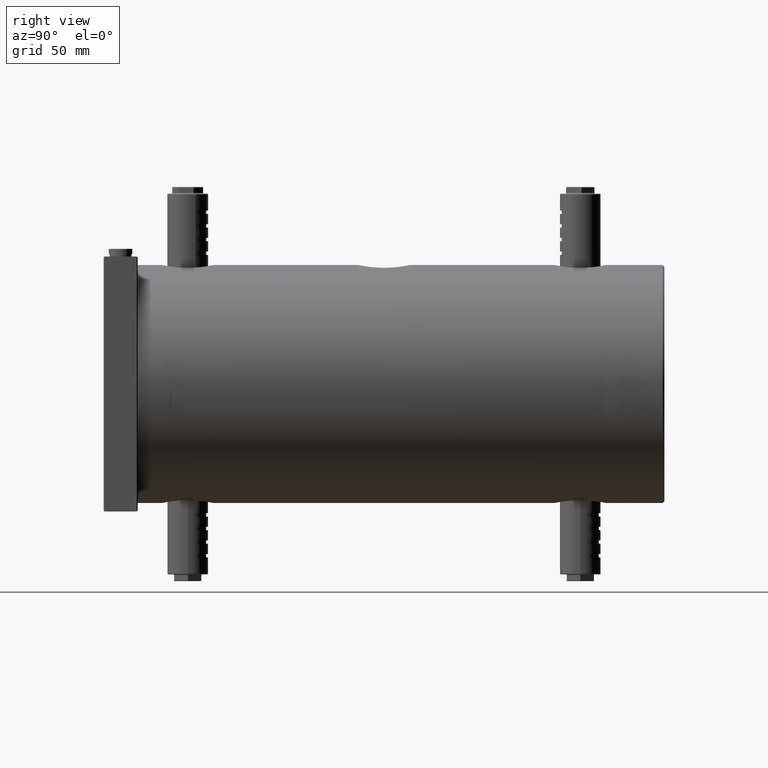
[diagram: clean part render]
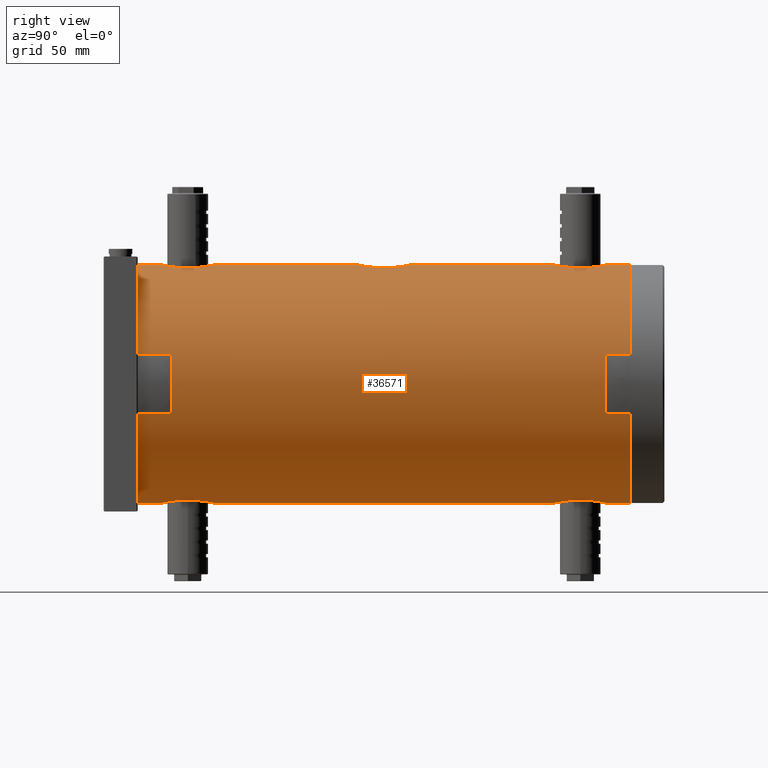
[diagram: same view with one face highlighted and labeled with its STEP entity id]
A machine part, right view. The second image highlights one B-rep face of the part: STEP entity #36571.
In plain terms, the highlighted cylindrical surface (partial cylindrical patch) has radius 70 mm, axis along (0, -1, 0).
Its self-contained STEP definition (entity closure, byte-faithful):
#13 = CARTESIAN_POINT ( 'NONE',  ( 3.884281969590265500, 63.99680388627126600, 69.89375879856953600 ) ) ;
#188 = CARTESIAN_POINT ( 'NONE',  ( 3.411199531626185200, 179.6153289274118900, 69.91851655966361500 ) ) ;
#196 = CARTESIAN_POINT ( 'NONE',  ( 3.894325176139356700, 35.00599892205499900, 69.89317888122792500 ) ) ;
#452 = LINE ( 'NONE', #1716, #36040 ) ;
#473 = CARTESIAN_POINT ( 'NONE',  ( 9.912018537136562600, 176.3006079322059600, 69.29819185406861900 ) ) ;
#933 = CARTESIAN_POINT ( 'NONE',  ( 0.9818532637390553500, 34.49999999999999300, 69.99999999999998600 ) ) ;
#1199 = CARTESIAN_POINT ( 'NONE',  ( 15.00000000000000400, 279.5055494783385400, 68.37397165588669200 ) ) ;
#1338 = CARTESIAN_POINT ( 'NONE',  ( 11.90163262882527000, 271.3570439946605000, 68.98153119982045200 ) ) ;
#1411 = AXIS2_PLACEMENT_3D ( 'NONE', #41334, #21249, #20947 ) ;
#1476 = AXIS2_PLACEMENT_3D ( 'NONE', #7689, #34488, #27295 ) ;
#1668 = CARTESIAN_POINT ( 'NONE',  ( 9.904372127727697300, 291.7759016860898700, -69.29683190011068900 ) ) ;
#1679 = CARTESIAN_POINT ( 'NONE',  ( 15.00000000000000000, 49.50000000000000000, 68.37397165588669200 ) ) ;
#1716 = CARTESIAN_POINT ( 'NONE',  ( 0.0000000000000000000, 20.00000000000000000, -70.00000000000000000 ) ) ;
#1739 = VERTEX_POINT ( 'NONE', #38891 ) ;
#1930 = CARTESIAN_POINT ( 'NONE',  ( 15.00000000000000000, 280.5000000000000000, 68.37397165588669200 ) ) ;
#2156 = EDGE_CURVE ( 'NONE', #30040, #35231, #17505, .T. ) ;
#2246 = CARTESIAN_POINT ( 'NONE',  ( 6.663719744854588200, 293.9744707856372100, -69.68805248096434500 ) ) ;
#2696 = CARTESIAN_POINT ( 'NONE',  ( 15.00000000000000000, 280.5000000000000000, -68.37397165588670600 ) ) ;
#2818 = CARTESIAN_POINT ( 'NONE',  ( 4.833438498675554300, 63.70849461233930800, -69.83453018951335900 ) ) ;
#2942 = CARTESIAN_POINT ( 'NONE',  ( 14.97598740810713200, 48.51709635050727300, -68.37925344864797200 ) ) ;
#3068 = CARTESIAN_POINT ( 'NONE',  ( 4.831473039360050200, 63.70921664294800000, 69.83467644144872100 ) ) ;
#3099 = EDGE_CURVE ( 'NONE', #38672, #30040, #31744, .T. ) ;
#3110 = CARTESIAN_POINT ( 'NONE',  ( 13.66829952197161900, 55.69807483708534300, -68.65285158838342700 ) ) ;
#3141 = EDGE_CURVE ( 'NONE', #32850, #40868, #5724, .T. ) ;
#3213 = CARTESIAN_POINT ( 'NONE',  ( 10.94724385125489800, 59.76621009225912200, 69.13956417800851300 ) ) ;
#3335 = CARTESIAN_POINT ( 'NONE',  ( 14.99999999999999800, 164.0063396400913100, 68.37397165588669200 ) ) ;
#3509 = CARTESIAN_POINT ( 'NONE',  ( 9.906659207541682800, 38.19390577684160300, -69.29902337167075600 ) ) ;
#3524 = EDGE_CURVE ( 'NONE', #30681, #5154, #18295, .T. ) ;
#3527 = CARTESIAN_POINT ( 'NONE',  ( 4.835300587557441100, 179.2078043361017300, 69.83439046006492400 ) ) ;
#3614 = CARTESIAN_POINT ( 'NONE',  ( 5.296851514377408400, 150.9577954640444400, 69.80078522711120600 ) ) ;
#3670 = ORIENTED_EDGE ( 'NONE', *, *, #6348, .T. ) ;
#3819 = CARTESIAN_POINT ( 'NONE',  ( 7.515997053499379600, 36.50951068749665800, -69.59669964715550300 ) ) ;
#3833 = CARTESIAN_POINT ( 'NONE',  ( 14.49544038897939500, 168.8891676084357100, 68.48287149377165400 ) ) ;
#3842 = CARTESIAN_POINT ( 'NONE',  ( 14.04041362575999600, 44.19826756735611200, 68.57772089566894600 ) ) ;
#4112 = EDGE_CURVE ( 'NONE', #35492, #38672, #28766, .T. ) ;
#4123 = CARTESIAN_POINT ( 'NONE',  ( 9.158292757567851400, 37.57949129223593600, 69.40322452848236900 ) ) ;
#4235 = VERTEX_POINT ( 'NONE', #24815 ) ;
#4405 = CARTESIAN_POINT ( 'NONE',  ( 14.04041362575999600, 275.1982675673562000, 68.57772089566893200 ) ) ;
#4413 = CARTESIAN_POINT ( 'NONE',  ( 8.572527594031473000E-015, 20.00000000000000000, 70.00000000000000000 ) ) ;
#4526 = LINE ( 'NONE', #4413, #13396 ) ;
#4542 = CARTESIAN_POINT ( 'NONE',  ( 14.20854562913976900, 275.6667145892660100, 68.54296981607628000 ) ) ;
#4588 = DIRECTION ( 'NONE',  ( 0.0000000000000000000, -1.000000000000000000, 0.0000000000000000000 ) ) ;
#4681 = CARTESIAN_POINT ( 'NONE',  ( 6.198379823196940000, 266.8318371385618700, 69.72650165042803400 ) ) ;
#4690 = CARTESIAN_POINT ( 'NONE',  ( 11.90163262882523500, 174.1429560053394700, 68.98153119982048100 ) ) ;
#4712 = VERTEX_POINT ( 'NONE', #8422 ) ;
#4833 = CARTESIAN_POINT ( 'NONE',  ( 12.18936415524447400, 289.2557330832066200, 68.93110498968903200 ) ) ;
#4834 = CARTESIAN_POINT ( 'NONE',  ( 8.572527655287267000E-015, 265.5000000000000000, 70.00000000000000000 ) ) ;
#5115 = CARTESIAN_POINT ( 'NONE',  ( 10.94724385125490200, 290.7662100922591400, 69.13956417800849900 ) ) ;
#5154 = VERTEX_POINT ( 'NONE', #42327 ) ;
#5724 = B_SPLINE_CURVE_WITH_KNOTS ( 'NONE', 3,
 ( #38353, #1199, #38059, #11541, #34428, #4542, #4405, #31178, #37916, #7906, #1338, #37759, #31455, #21496, #7632, #21346, #17702, #18264, #4681, #11129, #31609, #34563, #18119, #24848, #14512, #4834 ),
 .UNSPECIFIED., .F., .F.,
 ( 4, 2, 2, 2, 2, 2, 2, 2, 2, 2, 2, 2, 4 ),
 ( 0.0000000000000000000, 0.002940317991430679800, 0.004410476987146018600, 0.005880635982861358600, 0.008820953974292035400, 0.01029111297000737300, 0.01176127196572271200, 0.01470158995715326400, 0.01617174895286854400, 0.01764190794858382100, 0.01911206694429910100, 0.02058222594001438100, 0.02352254393144494200 ),
 .UNSPECIFIED. ) ;
#5813 = ORIENTED_EDGE ( 'NONE', *, *, #6290, .T. ) ;
#5892 = CARTESIAN_POINT ( 'NONE',  ( 14.61534878447354700, 52.91111284338482800, -68.45729545746755200 ) ) ;
#5971 = CARTESIAN_POINT ( 'NONE',  ( 1.964992235705831600, 150.0969915483788400, 69.97903048680194600 ) ) ;
#6038 = ORIENTED_EDGE ( 'NONE', *, *, #2156, .T. ) ;
#6071 = ORIENTED_EDGE ( 'NONE', *, *, #22391, .F. ) ;
#6161 = CARTESIAN_POINT ( 'NONE',  ( 5.301930517381077100, 63.54034058477932200, -69.80040821976446400 ) ) ;
#6262 = CARTESIAN_POINT ( 'NONE',  ( 7.935791044963282000, 267.7618181376661300, -69.54991035834278500 ) ) ;
#6290 = EDGE_CURVE ( 'NONE', #11088, #23359, #31830, .T. ) ;
#6348 = EDGE_CURVE ( 'NONE', #40868, #5154, #18201, .T. ) ;
#6350 = EDGE_LOOP ( 'NONE', ( #37235, #5813, #17350, #43171, #3670, #29189, #28836, #11381, #30468, #26176, #6038, #6071, #22523, #25142, #21692, #11482, #8424, #31132, #13256 ) ) ;
#6413 = CARTESIAN_POINT ( 'NONE',  ( -3.549444933162112900E-021, 265.5000000000000000, -70.00000000000000000 ) ) ;
#6421 = CARTESIAN_POINT ( 'NONE',  ( 11.27472723212912700, 59.40551446732787600, 69.08675378547002300 ) ) ;
#6459 = CARTESIAN_POINT ( 'NONE',  ( 14.04254687036676200, 54.79579275481893300, -68.57727991421417400 ) ) ;
#6563 = CARTESIAN_POINT ( 'NONE',  ( 14.61209414795812800, 52.92490283768052700, 68.45799069203846400 ) ) ;
#6697 = CARTESIAN_POINT ( 'NONE',  ( 8.572527594031473000E-015, 20.00000000000000000, 70.00000000000000000 ) ) ;
#6872 = CARTESIAN_POINT ( 'NONE',  ( 0.9813042146204605800, 34.52396530523667200, -69.99485240078578800 ) ) ;
#6961 = CIRCLE ( 'NONE', #1411, 70.00000000000000000 ) ;
#6981 = CARTESIAN_POINT ( 'NONE',  ( 6.654704849420136600, 151.5212953090069700, 69.68887946088511900 ) ) ;
#7035 = CARTESIAN_POINT ( 'NONE',  ( 3.894325176139379300, 179.4940010779449400, 69.89317888122793900 ) ) ;
#7129 = CARTESIAN_POINT ( 'NONE',  ( 14.49046315668147700, 161.0923693559493000, 68.48392589587416500 ) ) ;
#7130 = EDGE_CURVE ( 'NONE', #17225, #1739, #39927, .T. ) ;
#7167 = CARTESIAN_POINT ( 'NONE',  ( 12.19463680880068800, 40.75193575162212100, -68.93015887730885500 ) ) ;
#7367 = CARTESIAN_POINT ( 'NONE',  ( 8.571058060392850000E-015, 150.0000000000000000, 70.00000000000000000 ) ) ;
#7584 = VERTEX_POINT ( 'NONE', #32860 ) ;
#7632 = CARTESIAN_POINT ( 'NONE',  ( 9.158292757567853200, 268.5794912922359600, 69.40322452848236900 ) ) ;
#7660 = CARTESIAN_POINT ( 'NONE',  ( 0.9944421717328090200, 295.5000000000000000, -70.00000000000001400 ) ) ;
#7689 = CARTESIAN_POINT ( 'NONE',  ( 0.0000000000000000000, 20.00000000000000000, 0.0000000000000000000 ) ) ;
#7906 = CARTESIAN_POINT ( 'NONE',  ( 12.19654584307158300, 271.7544753279142400, 68.92982548532849300 ) ) ;
#8067 = CARTESIAN_POINT ( 'NONE',  ( 5.296019958376627200, 179.0424627839952300, 69.80083894510318000 ) ) ;
#8318 = DIRECTION ( 'NONE',  ( 0.0000000000000000000, -1.000000000000000000, 0.0000000000000000000 ) ) ;
#8422 = CARTESIAN_POINT ( 'NONE',  ( 0.0000000000000000000, 310.0000000000000000, -70.00000000000000000 ) ) ;
#8424 = ORIENTED_EDGE ( 'NONE', *, *, #7130, .F. ) ;
#8465 = CARTESIAN_POINT ( 'NONE',  ( 13.47364613455915200, 287.1644427817546400, 68.69212029715872300 ) ) ;
#8549 = CARTESIAN_POINT ( 'NONE',  ( 0.0000000000000000000, 20.00000000000000000, -70.00000000000000000 ) ) ;
#8780 = CARTESIAN_POINT ( 'NONE',  ( 14.20786684150948000, 285.3351129253862300, -68.54310972289820800 ) ) ;
#9093 = VECTOR ( 'NONE', #16446, 1000.000000000000000 ) ;
#9611 = CARTESIAN_POINT ( 'NONE',  ( 3.904520863412934300, 265.9837397770987200, -69.89768449480979500 ) ) ;
#9620 = CARTESIAN_POINT ( 'NONE',  ( 1.964992235705822900, 64.40300845162121800, 69.97903048680194600 ) ) ;
#9768 = CARTESIAN_POINT ( 'NONE',  ( 8.571058099166941200E-015, 64.50000000000000000, 70.00000000000000000 ) ) ;
#9877 = CARTESIAN_POINT ( 'NONE',  ( 11.27472723212913200, 155.0944855326721100, 69.08675378547000900 ) ) ;
#9906 = CARTESIAN_POINT ( 'NONE',  ( 0.9896757848060138100, 64.50000000000001400, 70.00000000000000000 ) ) ;
#10002 = CARTESIAN_POINT ( 'NONE',  ( 8.571058131478683900E-015, 295.5000000000000600, 70.00000000000000000 ) ) ;
#10049 = CARTESIAN_POINT ( 'NONE',  ( 6.654704849420134800, 62.97870469099301300, 69.68887946088510400 ) ) ;
#10069 = CARTESIAN_POINT ( 'NONE',  ( 12.73707744354900100, 41.56245294884249100, -68.83198985897932700 ) ) ;
#10233 = CARTESIAN_POINT ( 'NONE',  ( 1.957424923832685700, 179.9045286833094500, 69.97935015604001300 ) ) ;
#10240 = CARTESIAN_POINT ( 'NONE',  ( 6.198379823196935600, 35.83183713856170300, 69.72650165042803400 ) ) ;
#10328 = CARTESIAN_POINT ( 'NONE',  ( 15.00000000000001100, 165.0000000000000000, 68.37397165588670600 ) ) ;
#10360 = CARTESIAN_POINT ( 'NONE',  ( 1.965607426050439900, 34.62112367861596600, -69.97412884785401800 ) ) ;
#10734 = CARTESIAN_POINT ( 'NONE',  ( 8.572527594031473000E-015, 20.00000000000000000, 70.00000000000000000 ) ) ;
#10975 = EDGE_CURVE ( 'NONE', #19269, #4235, #13338, .T. ) ;
#11088 = VERTEX_POINT ( 'NONE', #33697 ) ;
#11129 = CARTESIAN_POINT ( 'NONE',  ( 5.296019958376629900, 266.4575372160047700, 69.80083894510318000 ) ) ;
#11165 = CARTESIAN_POINT ( 'NONE',  ( 4.833438498675604000, 294.7084946123392200, -69.83453018951334500 ) ) ;
#11381 = ORIENTED_EDGE ( 'NONE', *, *, #32768, .T. ) ;
#11408 = CARTESIAN_POINT ( 'NONE',  ( 13.47462535697296800, 171.6633923618771300, 68.69193943685095900 ) ) ;
#11469 = DIRECTION ( 'NONE',  ( 0.0000000000000000000, -1.000000000000000000, 0.0000000000000000000 ) ) ;
#11482 = ORIENTED_EDGE ( 'NONE', *, *, #43076, .F. ) ;
#11541 = CARTESIAN_POINT ( 'NONE',  ( 14.61479017948289700, 277.0871026298668800, 68.45741379177846400 ) ) ;
#11723 = CARTESIAN_POINT ( 'NONE',  ( 8.745971789726938900, 292.6962264588577800, -69.45269013681172500 ) ) ;
#11826 = CARTESIAN_POINT ( 'NONE',  ( 14.20257355608248400, 285.3507735599113200, 68.54420860284835700 ) ) ;
#11838 = CARTESIAN_POINT ( 'NONE',  ( 8.571058099166941200E-015, 64.50000000000000000, 70.00000000000000000 ) ) ;
#11841 = EDGE_CURVE ( 'NONE', #22541, #30681, #32931, .T. ) ;
#11868 = CARTESIAN_POINT ( 'NONE',  ( 15.00000000000000200, 281.4818238889431500, -68.37397165588673400 ) ) ;
#11915 = VECTOR ( 'NONE', #4588, 1000.000000000000000 ) ;
#11982 = CARTESIAN_POINT ( 'NONE',  ( 5.296851514377402200, 294.5422045359555900, 69.80078522711120600 ) ) ;
#12546 = CARTESIAN_POINT ( 'NONE',  ( 8.571058060392850000E-015, 150.0000000000000000, 70.00000000000000000 ) ) ;
#12606 = CARTESIAN_POINT ( 'NONE',  ( 3.412969720909060400, 64.11477398072194900, -69.91840138259898700 ) ) ;
#12858 = CARTESIAN_POINT ( 'NONE',  ( 15.00000000000000000, 49.50000000000000000, -68.37397165588670600 ) ) ;
#12887 = CARTESIAN_POINT ( 'NONE',  ( 9.904372127727697300, 60.77590168608976700, -69.29683190011067500 ) ) ;
#12983 = CARTESIAN_POINT ( 'NONE',  ( 14.51633582594487300, 276.5961691150546900, -68.47857156061535000 ) ) ;
#13052 = DIRECTION ( 'NONE',  ( 0.0000000000000000000, -1.000000000000000000, 0.0000000000000000000 ) ) ;
#13067 = CYLINDRICAL_SURFACE ( 'NONE', #1476, 70.00000000000000000 ) ;
#13114 = CARTESIAN_POINT ( 'NONE',  ( 1.965607426050434800, 265.6211236786160200, -69.97412884785400400 ) ) ;
#13256 = ORIENTED_EDGE ( 'NONE', *, *, #17055, .F. ) ;
#13278 = CARTESIAN_POINT ( 'NONE',  ( 8.740231513553784000, 61.70038454756961200, 69.45341899641522300 ) ) ;
#13338 = B_SPLINE_CURVE_WITH_KNOTS ( 'NONE', 3,
 ( #32680, #16387, #22824, #12606, #39410, #2818, #6161, #29592, #32949, #26328, #32824, #12887, #25909, #26484, #29724, #19873, #15968, #19308, #3110, #6459, #16538, #36038, #5892, #16098, #26037, #29873 ),
 .UNSPECIFIED., .F., .F.,
 ( 4, 2, 2, 2, 2, 2, 2, 2, 2, 2, 2, 2, 4 ),
 ( 5.109216232873362200E-019, 0.002940340695797959200, 0.004410511043696934700, 0.005880681391595911500, 0.008821022087393864300, 0.01029119243529284100, 0.01176136278319182000, 0.01470170347898976300, 0.01617187382688872400, 0.01764204417478768300, 0.01911221452268664300, 0.02058238487058560600, 0.02352272556638354900 ),
 .UNSPECIFIED. ) ;
#13396 = VECTOR ( 'NONE', #27830, 1000.000000000000000 ) ;
#13397 = CARTESIAN_POINT ( 'NONE',  ( 14.20257355608248400, 160.1492264400887400, 68.54420860284837100 ) ) ;
#13413 = VECTOR ( 'NONE', #11469, 1000.000000000000000 ) ;
#13414 = CARTESIAN_POINT ( 'NONE',  ( 0.4901609354173572800, 265.4999999999999400, -69.99999999999998600 ) ) ;
#13423 = CARTESIAN_POINT ( 'NONE',  ( 13.47364613455915700, 56.16444278175453800, 68.69212029715872300 ) ) ;
#13588 = CARTESIAN_POINT ( 'NONE',  ( 13.66562444703594400, 43.29571613274870100, -68.65338868779950600 ) ) ;
#13691 = CARTESIAN_POINT ( 'NONE',  ( 12.18936415524448300, 156.2442669167934100, 68.93110498968903200 ) ) ;
#13846 = CARTESIAN_POINT ( 'NONE',  ( 9.896639457386660500, 153.7174036577838200, 69.29792839007598100 ) ) ;
#13903 = CARTESIAN_POINT ( 'NONE',  ( 14.04041362575999900, 170.3017324326438900, 68.57772089566893200 ) ) ;
#13912 = CARTESIAN_POINT ( 'NONE',  ( 13.47462535697296600, 42.83660763812292100, 68.69193943685095900 ) ) ;
#14055 = CARTESIAN_POINT ( 'NONE',  ( 14.20854562913979400, 44.66671458926617100, 68.54296981607629400 ) ) ;
#14243 = CARTESIAN_POINT ( 'NONE',  ( 3.889264802872451500, 294.9954153497749900, -69.89347146768193400 ) ) ;
#14512 = CARTESIAN_POINT ( 'NONE',  ( 0.9818532637390381400, 265.5000000000000600, 70.00000000000001400 ) ) ;
#14514 = LINE ( 'NONE', #8549, #13413 ) ;
#14682 = CARTESIAN_POINT ( 'NONE',  ( 1.959143183267115000E-014, 295.5000000000000000, -70.00000000000000000 ) ) ;
#14797 = CARTESIAN_POINT ( 'NONE',  ( 4.831473039360064400, 294.7092166429480900, 69.83467644144872100 ) ) ;
#14809 = CARTESIAN_POINT ( 'NONE',  ( 6.198379823196937400, 178.6681628614383900, 69.72650165042803400 ) ) ;
#15253 = CARTESIAN_POINT ( 'NONE',  ( 12.99747105796112500, 288.0037140288114900, -68.78314516951695600 ) ) ;
#15414 = EDGE_CURVE ( 'NONE', #4235, #18748, #34550, .T. ) ;
#15530 = CARTESIAN_POINT ( 'NONE',  ( 9.143403604904586100, 292.4012905433271500, -69.40133766113244500 ) ) ;
#15968 = CARTESIAN_POINT ( 'NONE',  ( 12.99747105796113500, 57.00371402881139500, -68.78314516951695600 ) ) ;
#16037 = CARTESIAN_POINT ( 'NONE',  ( 3.407087707206828000, 150.3838456766401600, 69.91869012606848300 ) ) ;
#16043 = CARTESIAN_POINT ( 'NONE',  ( 14.49046315668147500, 284.4076306440507600, 68.48392589587413700 ) ) ;
#16098 = CARTESIAN_POINT ( 'NONE',  ( 14.90453449847790400, 51.45736942659057400, -68.39512948415976700 ) ) ;
#16170 = CARTESIAN_POINT ( 'NONE',  ( 3.884281969590269900, 150.5031961137287300, 69.89375879856950700 ) ) ;
#16188 = CARTESIAN_POINT ( 'NONE',  ( 10.95144359926252700, 270.2380168144019900, -69.13891825392271100 ) ) ;
#16337 = CARTESIAN_POINT ( 'NONE',  ( 12.73707744354900500, 272.5624529488425200, -68.83198985897931300 ) ) ;
#16387 = CARTESIAN_POINT ( 'NONE',  ( 0.9944421717328130200, 64.50000000000000000, -70.00000000000002800 ) ) ;
#16446 = DIRECTION ( 'NONE',  ( 0.0000000000000000000, -1.000000000000000000, 0.0000000000000000000 ) ) ;
#16491 = CARTESIAN_POINT ( 'NONE',  ( 0.9813042146204595800, 265.5239653052366900, -69.99485240078580300 ) ) ;
#16498 = CARTESIAN_POINT ( 'NONE',  ( 11.89540583947579600, 58.65084755285112500, 68.98259449083686000 ) ) ;
#16538 = CARTESIAN_POINT ( 'NONE',  ( 14.20786684150947300, 54.33511292538625500, -68.54310972289819400 ) ) ;
#16555 = DIRECTION ( 'NONE',  ( 0.0000000000000000000, 0.0000000000000000000, -1.000000000000000000 ) ) ;
#16636 = CARTESIAN_POINT ( 'NONE',  ( 12.98882839742184100, 272.9812663004863100, -68.78478111668530900 ) ) ;
#16780 = CARTESIAN_POINT ( 'NONE',  ( 14.87826716255492000, 278.5293491756250400, -68.40058236069235400 ) ) ;
#16803 = CARTESIAN_POINT ( 'NONE',  ( 3.904520863412931100, 34.98373977709867000, -69.89768449480975200 ) ) ;
#17055 = EDGE_CURVE ( 'NONE', #4712, #32111, #14514, .T. ) ;
#17094 = CARTESIAN_POINT ( 'NONE',  ( 14.23180435925517700, 44.66001404843669300, -68.53906932590994900 ) ) ;
#17225 = VERTEX_POINT ( 'NONE', #2696 ) ;
#17251 = CARTESIAN_POINT ( 'NONE',  ( 12.19654584307160400, 173.7455246720857900, 68.92982548532852100 ) ) ;
#17264 = CARTESIAN_POINT ( 'NONE',  ( 13.01341886220260900, 41.97599450520521500, 68.78195415424633600 ) ) ;
#17350 = ORIENTED_EDGE ( 'NONE', *, *, #18815, .T. ) ;
#17411 = CARTESIAN_POINT ( 'NONE',  ( 14.61479017948290800, 168.4128973701331500, 68.45741379177846400 ) ) ;
#17422 = CARTESIAN_POINT ( 'NONE',  ( 11.27632908884149600, 39.59611661885919200, 69.08650308260992300 ) ) ;
#17482 = CARTESIAN_POINT ( 'NONE',  ( 1.959143183267115000E-014, 295.5000000000000000, -70.00000000000000000 ) ) ;
#17505 = LINE ( 'NONE', #39465, #9093 ) ;
#17565 = CARTESIAN_POINT ( 'NONE',  ( 5.296019958376628100, 35.45753721600471700, 69.80083894510316600 ) ) ;
#17702 = CARTESIAN_POINT ( 'NONE',  ( 7.504125154213921800, 267.5027645693818400, 69.59796477038644000 ) ) ;
#18118 = CARTESIAN_POINT ( 'NONE',  ( 6.654704849420119700, 293.9787046909930300, 69.68887946088509000 ) ) ;
#18119 = CARTESIAN_POINT ( 'NONE',  ( 3.411199531626197200, 265.8846710725882200, 69.91851655966363000 ) ) ;
#18201 = LINE ( 'NONE', #6697, #39184 ) ;
#18262 = CARTESIAN_POINT ( 'NONE',  ( 11.27472723212913400, 290.4055144673278100, 69.08675378547000900 ) ) ;
#18264 = CARTESIAN_POINT ( 'NONE',  ( 6.640019768517783300, 267.0407964335657900, 69.68571397340888000 ) ) ;
#18295 = B_SPLINE_CURVE_WITH_KNOTS ( 'NONE', 3,
 ( #23826, #40570, #41600, #17411, #3833, #30603, #13903, #11408, #27212, #17251, #4690, #34858, #28129, #473, #23514, #20291, #30304, #23971, #14809, #8067, #3527, #7035, #188, #10233, #33685, #37034 ),
 .UNSPECIFIED., .F., .F.,
 ( 4, 2, 2, 2, 2, 2, 2, 2, 2, 2, 2, 2, 4 ),
 ( 0.0000000000000000000, 0.002940317991430658100, 0.004410476987145986500, 0.005880635982861316100, 0.008820953974291898300, 0.01029111297000722200, 0.01176127196572254600, 0.01470158995715313700, 0.01617174895286843300, 0.01764190794858373100, 0.01911206694429902800, 0.02058222594001432600, 0.02352254393144493500 ),
 .UNSPECIFIED. ) ;
#18451 = CARTESIAN_POINT ( 'NONE',  ( 14.61534878447353900, 283.9111128433849000, -68.45729545746758000 ) ) ;
#18732 = CARTESIAN_POINT ( 'NONE',  ( 12.74322368437369800, 288.4280145608179900, -68.83086405059326300 ) ) ;
#18748 = VERTEX_POINT ( 'NONE', #33692 ) ;
#18815 = EDGE_CURVE ( 'NONE', #23359, #32850, #38553, .T. ) ;
#18872 = CARTESIAN_POINT ( 'NONE',  ( 14.90453449847790200, 282.4573694265906200, -68.39512948415976700 ) ) ;
#18949 = CARTESIAN_POINT ( 'NONE',  ( 5.259694865256710300E-016, 64.50000000000000000, -70.00000000000000000 ) ) ;
#18997 = CARTESIAN_POINT ( 'NONE',  ( 15.00000000000000000, 280.5000000000000000, -68.37397165588670600 ) ) ;
#19269 = VERTEX_POINT ( 'NONE', #18949 ) ;
#19308 = CARTESIAN_POINT ( 'NONE',  ( 13.45937121201897900, 56.13967655129327000, -68.69425478080722800 ) ) ;
#19534 = CARTESIAN_POINT ( 'NONE',  ( 4.831473039360061800, 150.7907833570520500, 69.83467644144873500 ) ) ;
#19688 = CARTESIAN_POINT ( 'NONE',  ( 9.906659207541707700, 269.1939057768416300, -69.29902337167074200 ) ) ;
#19696 = CARTESIAN_POINT ( 'NONE',  ( 9.138625920494515500, 61.40487165223373000, 69.40195867546438500 ) ) ;
#19811 = CARTESIAN_POINT ( 'NONE',  ( 13.47364613455917500, 158.3355572182454400, 68.69212029715870900 ) ) ;
#19819 = DIRECTION ( 'NONE',  ( 0.0000000000000000000, -1.000000000000000000, 0.0000000000000000000 ) ) ;
#19831 = CARTESIAN_POINT ( 'NONE',  ( 14.97598740810713700, 279.5170963505073000, -68.37925344864797200 ) ) ;
#19838 = CARTESIAN_POINT ( 'NONE',  ( 14.03648741840250700, 54.81182693530939100, 68.57852181056901500 ) ) ;
#19873 = CARTESIAN_POINT ( 'NONE',  ( 12.74322368437369600, 57.42801456081787100, -68.83086405059326300 ) ) ;
#19983 = CARTESIAN_POINT ( 'NONE',  ( 14.99999999999999600, 50.49366035990870900, 68.37397165588670600 ) ) ;
#19998 = LINE ( 'NONE', #28383, #20509 ) ;
#20001 = CARTESIAN_POINT ( 'NONE',  ( 6.198748216113336300, 35.83193190268806200, -69.72648120499791000 ) ) ;
#20114 = CARTESIAN_POINT ( 'NONE',  ( 6.646834916421252800, 267.0440492762376700, -69.68508017559017300 ) ) ;
#20276 = CARTESIAN_POINT ( 'NONE',  ( 9.152333566239322600, 37.57578023679821700, -69.40390501797155300 ) ) ;
#20291 = CARTESIAN_POINT ( 'NONE',  ( 7.928452556073299500, 177.7429530952363700, 69.55077365034955500 ) ) ;
#20372 = CIRCLE ( 'NONE', #31797, 70.00000000000000000 ) ;
#20437 = CARTESIAN_POINT ( 'NONE',  ( 15.00000000000001100, 165.0000000000000000, 68.37397165588670600 ) ) ;
#20509 = VECTOR ( 'NONE', #8318, 1000.000000000000000 ) ;
#20594 = CARTESIAN_POINT ( 'NONE',  ( 10.95144359926250000, 39.23801681440186700, -69.13891825392272500 ) ) ;
#20763 = CARTESIAN_POINT ( 'NONE',  ( 15.00000000000000200, 48.50554947833852300, 68.37397165588672000 ) ) ;
#20947 = DIRECTION ( 'NONE',  ( 0.0000000000000000000, 0.0000000000000000000, -1.000000000000000000 ) ) ;
#21249 = DIRECTION ( 'NONE',  ( 0.0000000000000000000, -1.000000000000000000, 0.0000000000000000000 ) ) ;
#21346 = CARTESIAN_POINT ( 'NONE',  ( 7.928452556073316300, 267.7570469047636300, 69.55077365034955500 ) ) ;
#21495 = CARTESIAN_POINT ( 'NONE',  ( 9.896639457386680000, 291.7825963422162100, 69.29792839007596700 ) ) ;
#21496 = CARTESIAN_POINT ( 'NONE',  ( 9.912018537136587400, 269.1993920677940700, 69.29819185406857700 ) ) ;
#21680 = CARTESIAN_POINT ( 'NONE',  ( 5.301930517381057600, 294.5403405847794700, -69.80040821976449200 ) ) ;
#21692 = ORIENTED_EDGE ( 'NONE', *, *, #10975, .F. ) ;
#21812 = CARTESIAN_POINT ( 'NONE',  ( 15.00000000000000000, 280.5000000000000000, -68.37397165588670600 ) ) ;
#21856 = DIRECTION ( 'NONE',  ( 0.0000000000000000000, -1.000000000000000000, 0.0000000000000000000 ) ) ;
#21911 = CARTESIAN_POINT ( 'NONE',  ( 1.964992235705822500, 295.4030084516211900, 69.97903048680194600 ) ) ;
#22199 = CARTESIAN_POINT ( 'NONE',  ( 14.90222602801809900, 282.4740006978817600, 68.39563435870680100 ) ) ;
#22391 = EDGE_CURVE ( 'NONE', #7584, #35231, #20372, .T. ) ;
#22523 = ORIENTED_EDGE ( 'NONE', *, *, #39803, .F. ) ;
#22541 = VERTEX_POINT ( 'NONE', #7367 ) ;
#22824 = CARTESIAN_POINT ( 'NONE',  ( 1.971693979283500700, 64.40209200568078500, -69.97883451236033600 ) ) ;
#23058 = CARTESIAN_POINT ( 'NONE',  ( 9.896639457386674700, 60.78259634221616600, 69.29792839007595300 ) ) ;
#23323 = CARTESIAN_POINT ( 'NONE',  ( 14.61209414795814400, 161.5750971623195700, 68.45799069203847900 ) ) ;
#23343 = CARTESIAN_POINT ( 'NONE',  ( 13.45266804429839300, 273.8466743600071700, -68.69557117382382200 ) ) ;
#23350 = CARTESIAN_POINT ( 'NONE',  ( 15.00000000000000000, 49.50000000000000000, 68.37397165588669200 ) ) ;
#23359 = VERTEX_POINT ( 'NONE', #10002 ) ;
#23504 = CARTESIAN_POINT ( 'NONE',  ( 11.90394632942944700, 40.36023273368499500, -68.98112147085383600 ) ) ;
#23514 = CARTESIAN_POINT ( 'NONE',  ( 9.158292757567839000, 176.9205087077641000, 69.40322452848239700 ) ) ;
#23613 = CARTESIAN_POINT ( 'NONE',  ( 14.90222602801811600, 163.0259993021183500, 68.39563435870685700 ) ) ;
#23659 = CARTESIAN_POINT ( 'NONE',  ( 13.45266804429841100, 42.84667436000710700, -68.69557117382382200 ) ) ;
#23826 = CARTESIAN_POINT ( 'NONE',  ( 15.00000000000001100, 165.0000000000000000, 68.37397165588670600 ) ) ;
#23834 = CARTESIAN_POINT ( 'NONE',  ( 14.90209088409777900, 47.52831821036554100, 68.39565825020211800 ) ) ;
#23971 = CARTESIAN_POINT ( 'NONE',  ( 6.640019768517781500, 178.4592035664344100, 69.68571397340889500 ) ) ;
#24124 = CARTESIAN_POINT ( 'NONE',  ( 10.94726016259435600, 39.23377100820516700, 69.13956444296879100 ) ) ;
#24815 = CARTESIAN_POINT ( 'NONE',  ( 15.00000000000000000, 49.50000000000000000, -68.37397165588670600 ) ) ;
#24847 = CARTESIAN_POINT ( 'NONE',  ( 11.89540583947580500, 289.6508475528510800, 68.98259449083686000 ) ) ;
#24848 = CARTESIAN_POINT ( 'NONE',  ( 1.957424923832688800, 265.5954713166905800, 69.97935015603999900 ) ) ;
#25022 = CARTESIAN_POINT ( 'NONE',  ( 11.92090800321390600, 289.6577623557834000, -68.97972409095186200 ) ) ;
#25137 = CARTESIAN_POINT ( 'NONE',  ( 9.138625920494519100, 292.4048716522337900, 69.40195867546437100 ) ) ;
#25142 = ORIENTED_EDGE ( 'NONE', *, *, #15414, .F. ) ;
#25326 = CARTESIAN_POINT ( 'NONE',  ( 13.45937121201896500, 287.1396765512932300, -68.69425478080722800 ) ) ;
#25854 = CARTESIAN_POINT ( 'NONE',  ( 14.61209414795812800, 283.9249028376805200, 68.45799069203845000 ) ) ;
#25909 = CARTESIAN_POINT ( 'NONE',  ( 10.26672210974663100, 60.44679816382872400, -69.24388846382828400 ) ) ;
#26037 = CARTESIAN_POINT ( 'NONE',  ( 15.00000000000000000, 50.48182388894319000, -68.37397165588672000 ) ) ;
#26176 = ORIENTED_EDGE ( 'NONE', *, *, #3099, .T. ) ;
#26281 = CARTESIAN_POINT ( 'NONE',  ( 7.515997053499392100, 267.5095106874966900, -69.59669964715550300 ) ) ;
#26301 = CARTESIAN_POINT ( 'NONE',  ( 14.80508887929420300, 47.04026045613254300, -68.41651142432418500 ) ) ;
#26328 = CARTESIAN_POINT ( 'NONE',  ( 8.745971789726942400, 61.69622645885773700, -69.45269013681173900 ) ) ;
#26432 = CARTESIAN_POINT ( 'NONE',  ( 11.28317143307910100, 270.6040752676624900, -69.08537544229149300 ) ) ;
#26439 = CARTESIAN_POINT ( 'NONE',  ( 10.25819940778272400, 60.45475068211995100, 69.24515020977254700 ) ) ;
#26452 = CARTESIAN_POINT ( 'NONE',  ( 14.51633582594487300, 45.59616911505459300, -68.47857156061533600 ) ) ;
#26484 = CARTESIAN_POINT ( 'NONE',  ( 11.30107575578341500, 59.41148719595101800, -69.08525440816919200 ) ) ;
#26578 = CARTESIAN_POINT ( 'NONE',  ( 14.49046315668147300, 53.40763064405079100, 68.48392589587416500 ) ) ;
#26713 = CARTESIAN_POINT ( 'NONE',  ( 14.80508887929419400, 278.0402604561325000, -68.41651142432418500 ) ) ;
#26866 = CARTESIAN_POINT ( 'NONE',  ( 9.138625920494497700, 153.0951283477663200, 69.40195867546438500 ) ) ;
#26903 = CARTESIAN_POINT ( 'NONE',  ( 4.839551745235583600, 35.26831005314947000, -69.83842339010786300 ) ) ;
#27010 = CARTESIAN_POINT ( 'NONE',  ( 8.740231513553832000, 152.7996154524305200, 69.45341899641523800 ) ) ;
#27212 = CARTESIAN_POINT ( 'NONE',  ( 13.01341886220261300, 172.5240054947948400, 68.78195415424633600 ) ) ;
#27238 = FACE_OUTER_BOUND ( 'NONE', #6350, .T. ) ;
#27295 = DIRECTION ( 'NONE',  ( 0.0000000000000000000, 0.0000000000000000000, -1.000000000000000000 ) ) ;
#27830 = DIRECTION ( 'NONE',  ( 0.0000000000000000000, -1.000000000000000000, 0.0000000000000000000 ) ) ;
#28129 = CARTESIAN_POINT ( 'NONE',  ( 10.94726016259434500, 175.2662289917948300, 69.13956444296880500 ) ) ;
#28260 = CARTESIAN_POINT ( 'NONE',  ( 14.03648741840250500, 285.8118269353095700, 68.57852181056901500 ) ) ;
#28383 = CARTESIAN_POINT ( 'NONE',  ( 0.0000000000000000000, 20.00000000000000000, -70.00000000000000000 ) ) ;
#28394 = CARTESIAN_POINT ( 'NONE',  ( 7.515503642658314800, 293.5184993403066800, 69.60024018497138300 ) ) ;
#28536 = CARTESIAN_POINT ( 'NONE',  ( 13.01295014780856400, 288.0257537685415600, 68.78207951847205900 ) ) ;
#28673 = CARTESIAN_POINT ( 'NONE',  ( 8.571058131478683900E-015, 295.5000000000000600, 70.00000000000000000 ) ) ;
#28710 = CARTESIAN_POINT ( 'NONE',  ( 10.26672210974662400, 291.4467981638288200, -69.24388846382831300 ) ) ;
#28766 = B_SPLINE_CURVE_WITH_KNOTS ( 'NONE', 3,
 ( #9768, #9906, #9620, #30132, #13, #3068, #40084, #10049, #39789, #13278, #19696, #23058, #26439, #3213, #6421, #16498, #33502, #39936, #13423, #19838, #40227, #26578, #6563, #36719, #19983, #23350 ),
 .UNSPECIFIED., .F., .F.,
 ( 4, 2, 2, 2, 2, 2, 2, 2, 2, 2, 2, 2, 4 ),
 ( 0.07055034902211621000, 0.07348833072152705100, 0.07495732157123247100, 0.07642631242093787800, 0.07936429412034871900, 0.08083328497005415300, 0.08230227581975957400, 0.08377126666946499400, 0.08524025751917041500, 0.08817823921858128400, 0.08964723006828673200, 0.09111622091799216600, 0.09405420261740306300 ),
 .UNSPECIFIED. ) ;
#28836 = ORIENTED_EDGE ( 'NONE', *, *, #11841, .F. ) ;
#29189 = ORIENTED_EDGE ( 'NONE', *, *, #3524, .F. ) ;
#29415 = CARTESIAN_POINT ( 'NONE',  ( 14.99999999999999800, 49.00933750592746900, -68.37397165588672000 ) ) ;
#29490 = B_SPLINE_CURVE_WITH_KNOTS ( 'NONE', 3,
 ( #14682, #7660, #31493, #30925, #14243, #11165, #21680, #2246, #32080, #11723, #15530, #1668, #28710, #41910, #25022, #18732, #15253, #25326, #35596, #35165, #8780, #35331, #18451, #18872, #11868, #21812 ),
 .UNSPECIFIED., .F., .F.,
 ( 4, 2, 2, 2, 2, 2, 2, 2, 2, 2, 2, 2, 4 ),
 ( 1.903092557819552500E-017, 0.002940340695798030800, 0.004410511043697037900, 0.005880681391596045100, 0.008821022087394060300, 0.01029119243529311500, 0.01176136278319217000, 0.01470170347899016500, 0.01617187382688909200, 0.01764204417478801600, 0.01911221452268694800, 0.02058238487058587600, 0.02352272556638372900 ),
 .UNSPECIFIED. ) ;
#29546 = CARTESIAN_POINT ( 'NONE',  ( 4.839551745235565900, 266.2683100531494900, -69.83842339010789100 ) ) ;
#29592 = CARTESIAN_POINT ( 'NONE',  ( 6.663719744854590000, 62.97447078563713100, -69.68805248096434500 ) ) ;
#29724 = CARTESIAN_POINT ( 'NONE',  ( 11.92090800321391200, 58.65776235578327700, -68.97972409095186200 ) ) ;
#29824 = CARTESIAN_POINT ( 'NONE',  ( 2.458021943035169500, 265.6945989032547600, -69.95849500492958800 ) ) ;
#29873 = CARTESIAN_POINT ( 'NONE',  ( 15.00000000000000000, 49.50000000000000000, -68.37397165588670600 ) ) ;
#29955 = CARTESIAN_POINT ( 'NONE',  ( 10.25819940778272800, 154.0452493178800900, 69.24515020977258900 ) ) ;
#30040 = VERTEX_POINT ( 'NONE', #35794 ) ;
#30132 = CARTESIAN_POINT ( 'NONE',  ( 3.407087707206811500, 64.11615432335980800, 69.91869012606849800 ) ) ;
#30304 = CARTESIAN_POINT ( 'NONE',  ( 7.504125154213916500, 177.9972354306182800, 69.59796477038644000 ) ) ;
#30310 = CARTESIAN_POINT ( 'NONE',  ( 7.504125154213898700, 36.50276456938173900, 69.59796477038642600 ) ) ;
#30382 = EDGE_CURVE ( 'NONE', #4712, #11088, #6961, .T. ) ;
#30395 = CARTESIAN_POINT ( 'NONE',  ( 14.03648741840252400, 159.6881730646906600, 68.57852181056898600 ) ) ;
#30468 = ORIENTED_EDGE ( 'NONE', *, *, #4112, .T. ) ;
#30603 = CARTESIAN_POINT ( 'NONE',  ( 14.20854562913980200, 169.8332854107337700, 68.54296981607629400 ) ) ;
#30681 = VERTEX_POINT ( 'NONE', #20437 ) ;
#30896 = CARTESIAN_POINT ( 'NONE',  ( 12.19654584307160600, 40.75447532791422800, 68.92982548532853600 ) ) ;
#30925 = CARTESIAN_POINT ( 'NONE',  ( 3.412969720909097200, 295.1147739807220200, -69.91840138259900100 ) ) ;
#31132 = ORIENTED_EDGE ( 'NONE', *, *, #40147, .F. ) ;
#31178 = CARTESIAN_POINT ( 'NONE',  ( 13.47462535697297000, 273.8366076381229800, 68.69193943685095900 ) ) ;
#31225 = CARTESIAN_POINT ( 'NONE',  ( 8.572527655287267000E-015, 265.5000000000000000, 70.00000000000000000 ) ) ;
#31455 = CARTESIAN_POINT ( 'NONE',  ( 10.94726016259436500, 270.2337710082051100, 69.13956444296877600 ) ) ;
#31493 = CARTESIAN_POINT ( 'NONE',  ( 1.971693979283524600, 295.4020920056808000, -69.97883451236033600 ) ) ;
#31609 = CARTESIAN_POINT ( 'NONE',  ( 4.835300587557417100, 266.2921956638983300, 69.83439046006495200 ) ) ;
#31744 = B_SPLINE_CURVE_WITH_KNOTS ( 'NONE', 3,
 ( #34134, #20763, #23834, #37181, #37610, #14055, #3842, #13912, #17264, #30896, #37478, #17422, #24124, #34284, #4123, #40576, #30310, #33842, #10240, #17565, #41009, #196, #33693, #40413, #933, #38204 ),
 .UNSPECIFIED., .F., .F.,
 ( 4, 2, 2, 2, 2, 2, 2, 2, 2, 2, 2, 2, 4 ),
 ( 0.0000000000000000000, 0.002940317991430620300, 0.004410476987145930100, 0.005880635982861239800, 0.008820953974291858400, 0.01029111297000716500, 0.01176127196572247400, 0.01470158995715307500, 0.01617174895286838100, 0.01764190794858368600, 0.01911206694429899000, 0.02058222594001429500, 0.02352254393144491100 ),
 .UNSPECIFIED. ) ;
#31797 = AXIS2_PLACEMENT_3D ( 'NONE', #39304, #13052, #16555 ) ;
#31830 = LINE ( 'NONE', #10734, #11915 ) ;
#32080 = CARTESIAN_POINT ( 'NONE',  ( 7.524404257614066600, 293.5131929247884800, -69.59925358590223300 ) ) ;
#32111 = VERTEX_POINT ( 'NONE', #17482 ) ;
#32680 = CARTESIAN_POINT ( 'NONE',  ( 5.259694865256710300E-016, 64.50000000000000000, -70.00000000000000000 ) ) ;
#32768 = EDGE_CURVE ( 'NONE', #22541, #35492, #4526, .T. ) ;
#32824 = CARTESIAN_POINT ( 'NONE',  ( 9.143403604904584400, 61.40129054332719200, -69.40133766113245900 ) ) ;
#32850 = VERTEX_POINT ( 'NONE', #1930 ) ;
#32860 = CARTESIAN_POINT ( 'NONE',  ( 0.0000000000000000000, 20.00000000000000000, -70.00000000000000000 ) ) ;
#32931 = B_SPLINE_CURVE_WITH_KNOTS ( 'NONE', 3,
 ( #12546, #33029, #5971, #16037, #16170, #19534, #3614, #6981, #33627, #27010, #26866, #13846, #29955, #43413, #9877, #33476, #13691, #36698, #19811, #30395, #13397, #7129, #23323, #23613, #3335, #10328 ),
 .UNSPECIFIED., .F., .F.,
 ( 4, 2, 2, 2, 2, 2, 2, 2, 2, 2, 2, 2, 4 ),
 ( 0.07055034902211615400, 0.07348833072152699500, 0.07495732157123240200, 0.07642631242093780900, 0.07936429412034859400, 0.08083328497005398700, 0.08230227581975938000, 0.08377126666946477200, 0.08524025751917016500, 0.08817823921858103400, 0.08964723006828649600, 0.09111622091799195800, 0.09405420261740297900 ),
 .UNSPECIFIED. ) ;
#32949 = CARTESIAN_POINT ( 'NONE',  ( 7.524404257614065700, 62.51319292478839200, -69.59925358590221800 ) ) ;
#33029 = CARTESIAN_POINT ( 'NONE',  ( 0.9896757848060163700, 150.0000000000000000, 69.99999999999998600 ) ) ;
#33232 = CARTESIAN_POINT ( 'NONE',  ( 8.572527594031473000E-015, 20.00000000000000000, 70.00000000000000000 ) ) ;
#33476 = CARTESIAN_POINT ( 'NONE',  ( 11.89540583947580100, 155.8491524471489200, 68.98259449083684600 ) ) ;
#33494 = CARTESIAN_POINT ( 'NONE',  ( 6.198748216113304300, 266.8319319026880400, -69.72648120499791000 ) ) ;
#33502 = CARTESIAN_POINT ( 'NONE',  ( 12.18936415524446000, 58.25573308320661400, 68.93110498968904700 ) ) ;
#33521 = CARTESIAN_POINT ( 'NONE',  ( 6.646834916421230600, 36.04404927623772900, -69.68508017559017300 ) ) ;
#33627 = CARTESIAN_POINT ( 'NONE',  ( 7.515503642658336100, 151.9815006596933800, 69.60024018497139800 ) ) ;
#33670 = CARTESIAN_POINT ( 'NONE',  ( 0.4901609354173614400, 34.50000000000000700, -70.00000000000001400 ) ) ;
#33685 = CARTESIAN_POINT ( 'NONE',  ( 0.9818532637390410300, 180.0000000000000300, 70.00000000000000000 ) ) ;
#33692 = CARTESIAN_POINT ( 'NONE',  ( -3.549470176711080000E-021, 34.50000000000000000, -70.00000000000000000 ) ) ;
#33693 = CARTESIAN_POINT ( 'NONE',  ( 3.411199531626237600, 34.88467107258814100, 69.91851655966360100 ) ) ;
#33697 = CARTESIAN_POINT ( 'NONE',  ( 8.572527594031473000E-015, 310.0000000000000000, 70.00000000000000000 ) ) ;
#33842 = CARTESIAN_POINT ( 'NONE',  ( 6.640019768517766400, 36.04079643356570300, 69.68571397340886600 ) ) ;
#33961 = CARTESIAN_POINT ( 'NONE',  ( 12.98882839742185500, 41.98126630048636800, -68.78478111668532300 ) ) ;
#34134 = CARTESIAN_POINT ( 'NONE',  ( 15.00000000000000000, 49.50000000000000000, 68.37397165588669200 ) ) ;
#34284 = CARTESIAN_POINT ( 'NONE',  ( 9.912018537136582100, 38.19939206779400800, 69.29819185406861900 ) ) ;
#34428 = CARTESIAN_POINT ( 'NONE',  ( 14.49544038897936800, 276.6108323915643200, 68.48287149377164000 ) ) ;
#34488 = DIRECTION ( 'NONE',  ( 0.0000000000000000000, -1.000000000000000000, 0.0000000000000000000 ) ) ;
#34550 = B_SPLINE_CURVE_WITH_KNOTS ( 'NONE', 3,
 ( #12858, #29415, #2942, #36452, #26301, #26452, #17094, #13588, #23659, #33961, #10069, #7167, #23504, #40390, #20594, #3509, #20276, #37302, #3819, #33521, #20001, #26903, #16803, #40693, #10360, #6872, #33670, #37021 ),
 .UNSPECIFIED., .F., .F.,
 ( 4, 2, 2, 2, 2, 2, 2, 2, 2, 2, 2, 2, 2, 4 ),
 ( 0.02352272556638354900, 0.02499214886670283700, 0.02646157216702212100, 0.02940041876766069300, 0.03086984206797997700, 0.03233926536829926500, 0.03380868866861855300, 0.03527811196893783400, 0.03821695856957640200, 0.03968638186989567600, 0.04115580517021496400, 0.04409465177085351900, 0.04556407507117278500, 0.04703349837149206600 ),
 .UNSPECIFIED. ) ;
#34563 = CARTESIAN_POINT ( 'NONE',  ( 3.894325176139347800, 266.0059989220552000, 69.89317888122796800 ) ) ;
#34844 = CARTESIAN_POINT ( 'NONE',  ( 3.884281969590277500, 294.9968038862713200, 69.89375879856952200 ) ) ;
#34858 = CARTESIAN_POINT ( 'NONE',  ( 11.27632908884148200, 174.9038833811408200, 69.08650308260992300 ) ) ;
#34995 = CARTESIAN_POINT ( 'NONE',  ( 3.407087707206813800, 295.1161543233598100, 69.91869012606851200 ) ) ;
#35165 = CARTESIAN_POINT ( 'NONE',  ( 14.04254687036676300, 285.7957927548189900, -68.57727991421420200 ) ) ;
#35231 = VERTEX_POINT ( 'NONE', #33232 ) ;
#35331 = CARTESIAN_POINT ( 'NONE',  ( 14.49403078120357300, 284.3942096631825500, -68.48316904455320800 ) ) ;
#35492 = VERTEX_POINT ( 'NONE', #11838 ) ;
#35596 = CARTESIAN_POINT ( 'NONE',  ( 13.66829952197161200, 286.6980748370854100, -68.65285158838341300 ) ) ;
#35794 = CARTESIAN_POINT ( 'NONE',  ( 8.572527655296733300E-015, 34.50000000000000000, 70.00000000000000000 ) ) ;
#36038 = CARTESIAN_POINT ( 'NONE',  ( 14.49403078120357200, 53.39420966318263600, -68.48316904455320800 ) ) ;
#36040 = VECTOR ( 'NONE', #21856, 1000.000000000000000 ) ;
#36291 = CARTESIAN_POINT ( 'NONE',  ( 11.90394632942942400, 271.3602327336849400, -68.98112147085382200 ) ) ;
#36452 = CARTESIAN_POINT ( 'NONE',  ( 14.87826716255491800, 47.52934917562505700, -68.40058236069235400 ) ) ;
#36571 = ADVANCED_FACE ( 'NONE', ( #27238 ), #13067, .T. ) ;
#36698 = CARTESIAN_POINT ( 'NONE',  ( 13.01295014780857400, 157.4742462314585200, 68.78207951847208800 ) ) ;
#36719 = CARTESIAN_POINT ( 'NONE',  ( 14.90222602801810200, 51.47400069788170600, 68.39563435870681500 ) ) ;
#36860 = CARTESIAN_POINT ( 'NONE',  ( 12.19463680880068600, 271.7519357516222300, -68.93015887730885500 ) ) ;
#37021 = CARTESIAN_POINT ( 'NONE',  ( -3.549470176711080000E-021, 34.50000000000000000, -70.00000000000000000 ) ) ;
#37034 = CARTESIAN_POINT ( 'NONE',  ( 8.572527655304621900E-015, 180.0000000000000300, 70.00000000000000000 ) ) ;
#37181 = CARTESIAN_POINT ( 'NONE',  ( 14.61479017948289700, 46.08710262986682000, 68.45741379177846400 ) ) ;
#37235 = ORIENTED_EDGE ( 'NONE', *, *, #30382, .T. ) ;
#37302 = CARTESIAN_POINT ( 'NONE',  ( 7.935791044963250900, 36.76181813766614000, -69.54991035834278500 ) ) ;
#37478 = CARTESIAN_POINT ( 'NONE',  ( 11.90163262882524400, 40.35704399466057200, 68.98153119982046600 ) ) ;
#37610 = CARTESIAN_POINT ( 'NONE',  ( 14.49544038897938400, 45.61083239156433700, 68.48287149377164000 ) ) ;
#37759 = CARTESIAN_POINT ( 'NONE',  ( 11.27632908884152000, 270.5961166188591800, 69.08650308260990900 ) ) ;
#37916 = CARTESIAN_POINT ( 'NONE',  ( 13.01341886220259900, 272.9759945052051600, 68.78195415424633600 ) ) ;
#38059 = CARTESIAN_POINT ( 'NONE',  ( 14.90209088409778100, 278.5283182103655700, 68.39565825020208900 ) ) ;
#38204 = CARTESIAN_POINT ( 'NONE',  ( 8.572527655296733300E-015, 34.50000000000000000, 70.00000000000000000 ) ) ;
#38353 = CARTESIAN_POINT ( 'NONE',  ( 15.00000000000000000, 280.5000000000000000, 68.37397165588669200 ) ) ;
#38494 = CARTESIAN_POINT ( 'NONE',  ( 10.25819940778272800, 291.4547506821199900, 69.24515020977257500 ) ) ;
#38553 = B_SPLINE_CURVE_WITH_KNOTS ( 'NONE', 3,
 ( #28673, #42014, #21911, #34995, #34844, #14797, #11982, #18118, #28394, #41589, #25137, #21495, #38494, #5115, #18262, #24847, #4833, #28536, #8465, #28260, #11826, #16043, #25854, #22199, #39207, #39068 ),
 .UNSPECIFIED., .F., .F.,
 ( 4, 2, 2, 2, 2, 2, 2, 2, 2, 2, 2, 2, 4 ),
 ( 0.07055034902211623800, 0.07348833072152713400, 0.07495732157123261000, 0.07642631242093807200, 0.07936429412034901000, 0.08083328497005447300, 0.08230227581975993500, 0.08377126666946541100, 0.08524025751917087300, 0.08817823921858167200, 0.08964723006828706500, 0.09111622091799247100, 0.09405420261740310400 ),
 .UNSPECIFIED. ) ;
#38672 = VERTEX_POINT ( 'NONE', #1679 ) ;
#38891 = CARTESIAN_POINT ( 'NONE',  ( -3.549444933162112900E-021, 265.5000000000000000, -70.00000000000000000 ) ) ;
#39068 = CARTESIAN_POINT ( 'NONE',  ( 15.00000000000000000, 280.5000000000000000, 68.37397165588669200 ) ) ;
#39184 = VECTOR ( 'NONE', #19819, 1000.000000000000000 ) ;
#39207 = CARTESIAN_POINT ( 'NONE',  ( 15.00000000000000000, 281.4936603599086900, 68.37397165588667700 ) ) ;
#39304 = CARTESIAN_POINT ( 'NONE',  ( 0.0000000000000000000, 20.00000000000000000, 0.0000000000000000000 ) ) ;
#39366 = CARTESIAN_POINT ( 'NONE',  ( 15.00000000000000000, 280.0093375059274200, -68.37397165588672000 ) ) ;
#39410 = CARTESIAN_POINT ( 'NONE',  ( 3.889264802872415000, 63.99541534977497300, -69.89347146768192000 ) ) ;
#39465 = CARTESIAN_POINT ( 'NONE',  ( 8.572527594031473000E-015, 20.00000000000000000, 70.00000000000000000 ) ) ;
#39789 = CARTESIAN_POINT ( 'NONE',  ( 7.515503642658305900, 62.51849934030666100, 69.60024018497139800 ) ) ;
#39803 = EDGE_CURVE ( 'NONE', #18748, #7584, #452, .T. ) ;
#39927 = B_SPLINE_CURVE_WITH_KNOTS ( 'NONE', 3,
 ( #18997, #39366, #19831, #16780, #26713, #12983, #42984, #40216, #23343, #16636, #16337, #36860, #36291, #26432, #16188, #19688, #40075, #6262, #26281, #20114, #33494, #29546, #9611, #29824, #13114, #16491, #13414, #6413 ),
 .UNSPECIFIED., .F., .F.,
 ( 4, 2, 2, 2, 2, 2, 2, 2, 2, 2, 2, 2, 2, 4 ),
 ( 0.02352272556638372900, 0.02499214886670293000, 0.02646157216702212800, 0.02940041876766069000, 0.03086984206798005000, 0.03233926536829941100, 0.03380868866861876800, 0.03527811196893812500, 0.03821695856957672100, 0.03968638186989602300, 0.04115580517021531800, 0.04409465177085390700, 0.04556407507117318800, 0.04703349837149246200 ),
 .UNSPECIFIED. ) ;
#39936 = CARTESIAN_POINT ( 'NONE',  ( 13.01295014780854600, 57.02575376854152000, 68.78207951847205900 ) ) ;
#40075 = CARTESIAN_POINT ( 'NONE',  ( 9.152333566239345700, 268.5757802367981500, -69.40390501797156700 ) ) ;
#40084 = CARTESIAN_POINT ( 'NONE',  ( 5.296851514377422600, 63.54220453595557700, 69.80078522711120600 ) ) ;
#40147 = EDGE_CURVE ( 'NONE', #32111, #17225, #29490, .T. ) ;
#40216 = CARTESIAN_POINT ( 'NONE',  ( 13.66562444703594700, 274.2957161327487900, -68.65338868779949200 ) ) ;
#40227 = CARTESIAN_POINT ( 'NONE',  ( 14.20257355608248400, 54.35077355991128200, 68.54420860284835700 ) ) ;
#40390 = CARTESIAN_POINT ( 'NONE',  ( 11.28317143307912900, 39.60407526766260100, -69.08537544229149300 ) ) ;
#40413 = CARTESIAN_POINT ( 'NONE',  ( 1.957424923832718800, 34.59547131669059200, 69.97935015603998500 ) ) ;
#40570 = CARTESIAN_POINT ( 'NONE',  ( 14.99999999999999800, 165.9944505216615200, 68.37397165588669200 ) ) ;
#40576 = CARTESIAN_POINT ( 'NONE',  ( 7.928452556073328800, 36.75704690476364100, 69.55077365034956900 ) ) ;
#40693 = CARTESIAN_POINT ( 'NONE',  ( 2.458021943035161100, 34.69459890325455100, -69.95849500492961700 ) ) ;
#40868 = VERTEX_POINT ( 'NONE', #31225 ) ;
#41009 = CARTESIAN_POINT ( 'NONE',  ( 4.835300587557425100, 35.29219566389829100, 69.83439046006491000 ) ) ;
#41334 = CARTESIAN_POINT ( 'NONE',  ( 0.0000000000000000000, 310.0000000000000000, 0.0000000000000000000 ) ) ;
#41589 = CARTESIAN_POINT ( 'NONE',  ( 8.740231513553807100, 292.7003845475695700, 69.45341899641520900 ) ) ;
#41600 = CARTESIAN_POINT ( 'NONE',  ( 14.90209088409779300, 166.9716817896344600, 68.39565825020210400 ) ) ;
#41910 = CARTESIAN_POINT ( 'NONE',  ( 11.30107575578340500, 290.4114871959511100, -69.08525440816917800 ) ) ;
#42014 = CARTESIAN_POINT ( 'NONE',  ( 0.9896757848060111500, 295.5000000000001700, 70.00000000000001400 ) ) ;
#42327 = CARTESIAN_POINT ( 'NONE',  ( 8.572527655304621900E-015, 180.0000000000000300, 70.00000000000000000 ) ) ;
#42984 = CARTESIAN_POINT ( 'NONE',  ( 14.23180435925518900, 275.6600140484368900, -68.53906932590994900 ) ) ;
#43076 = EDGE_CURVE ( 'NONE', #1739, #19269, #19998, .T. ) ;
#43171 = ORIENTED_EDGE ( 'NONE', *, *, #3141, .T. ) ;
#43413 = CARTESIAN_POINT ( 'NONE',  ( 10.94724385125489800, 154.7337899077408600, 69.13956417800849900 ) ) ;